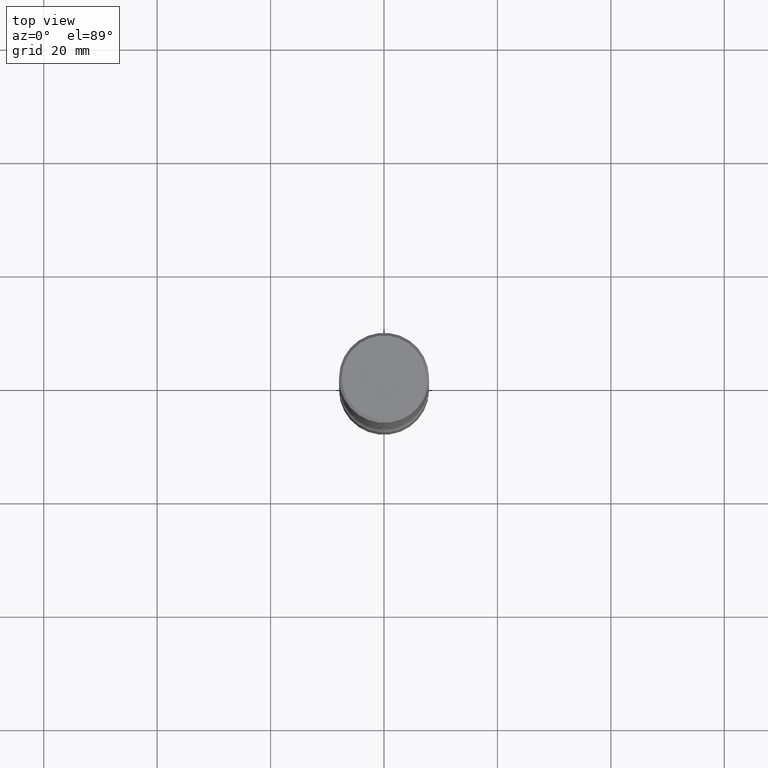
[diagram: clean part render]
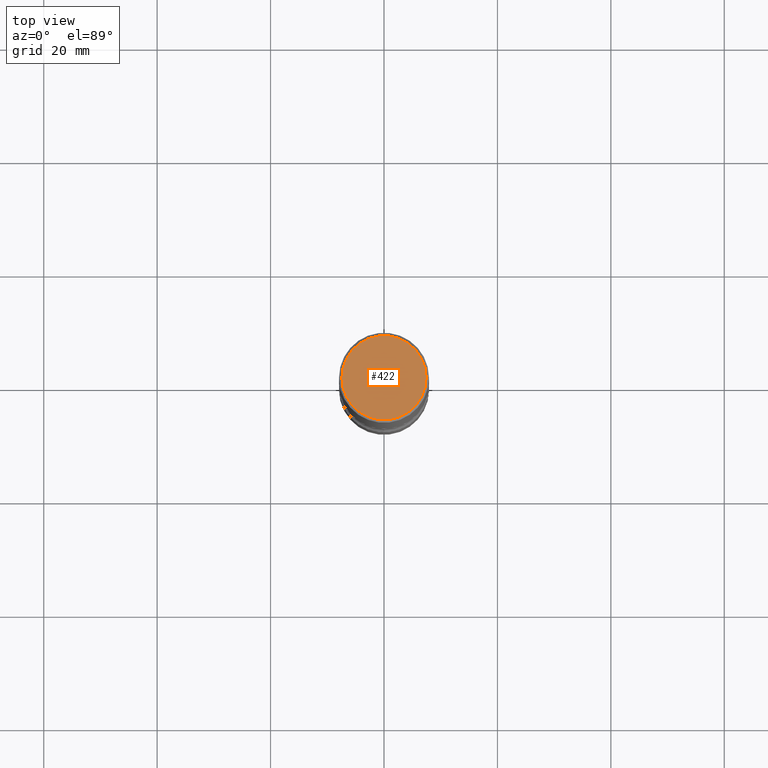
[diagram: same view with one face highlighted and labeled with its STEP entity id]
A machine part, top view. The second image highlights one B-rep face of the part: STEP entity #422.
In plain terms, the highlighted planar face has unit normal (0, -0, -1).
Its self-contained STEP definition (entity closure, byte-faithful):
#7 = VERTEX_POINT ( 'NONE', #273 ) ;
#39 = CIRCLE ( 'NONE', #103, 0.2924999999999998157 ) ;
#45 = CARTESIAN_POINT ( 'NONE',  ( 2.042516583223231356E-15, 0.2924999999999998157, -1.019124035366569212E-15 ) ) ;
#60 = DIRECTION ( 'NONE',  ( 1.000000000000000000, -6.982962677686266711E-15, 4.876067333457692840E-29 ) ) ;
#61 = DIRECTION ( 'NONE',  ( -1.000000000000000000, 6.982962677686265922E-15, -4.876176775795935793E-29 ) ) ;
#70 = EDGE_CURVE ( 'NONE', #7, #344, #39, .T. ) ;
#80 = EDGE_CURVE ( 'NONE', #344, #7, #324, .T. ) ;
#91 = DIRECTION ( 'NONE',  ( 2.438088387897960049E-29, -3.491481338843145188E-15, -1.000000000000000000 ) ) ;
#100 = CARTESIAN_POINT ( 'NONE',  ( -1.043851414335219820E-46, 1.490343170380447200E-32, 4.268512490100411279E-18 ) ) ;
#103 = AXIS2_PLACEMENT_3D ( 'NONE', #142, #405, #191 ) ;
#142 = CARTESIAN_POINT ( 'NONE',  ( -1.043851414335219820E-46, 1.490343170380447200E-32, 4.268512490100411279E-18 ) ) ;
#163 = AXIS2_PLACEMENT_3D ( 'NONE', #45, #91, #61 ) ;
#191 = DIRECTION ( 'NONE',  ( 1.000000000000000000, -6.982962677686266711E-15, 4.876067333457692840E-29 ) ) ;
#197 = ORIENTED_EDGE ( 'NONE', *, *, #80, .T. ) ;
#265 = AXIS2_PLACEMENT_3D ( 'NONE', #100, #445, #60 ) ;
#273 = CARTESIAN_POINT ( 'NONE',  ( 0.2924999999999998157, -2.110215457714318748E-15, 4.268512490114932791E-18 ) ) ;
#275 = FACE_OUTER_BOUND ( 'NONE', #345, .T. ) ;
#324 = CIRCLE ( 'NONE', #265, 0.2924999999999998157 ) ;
#333 = CARTESIAN_POINT ( 'NONE',  ( -0.2924999999999998157, 2.077431396611663005E-15, 4.268512490086005323E-18 ) ) ;
#344 = VERTEX_POINT ( 'NONE', #333 ) ;
#345 = EDGE_LOOP ( 'NONE', ( #197, #454 ) ) ;
#396 = PLANE ( 'NONE',  #163 ) ;
#405 = DIRECTION ( 'NONE',  ( -2.445468806185136597E-29, 3.491481338843145583E-15, 1.000000000000000000 ) ) ;
#422 = ADVANCED_FACE ( 'NONE', ( #275 ), #396, .F. ) ;
#445 = DIRECTION ( 'NONE',  ( -2.445468806185136597E-29, 3.491481338843145583E-15, 1.000000000000000000 ) ) ;
#454 = ORIENTED_EDGE ( 'NONE', *, *, #70, .T. ) ;